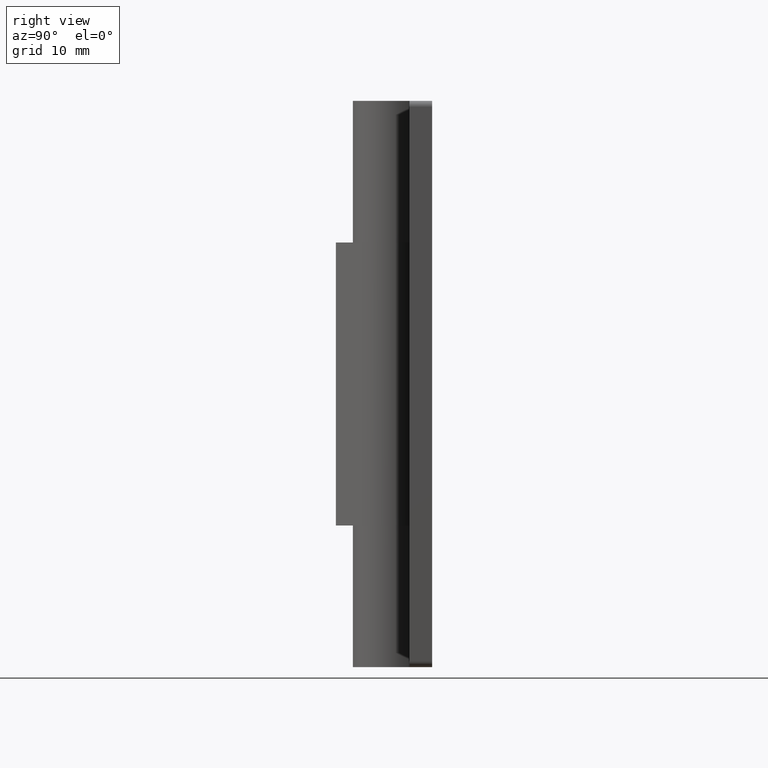
[diagram: clean part render]
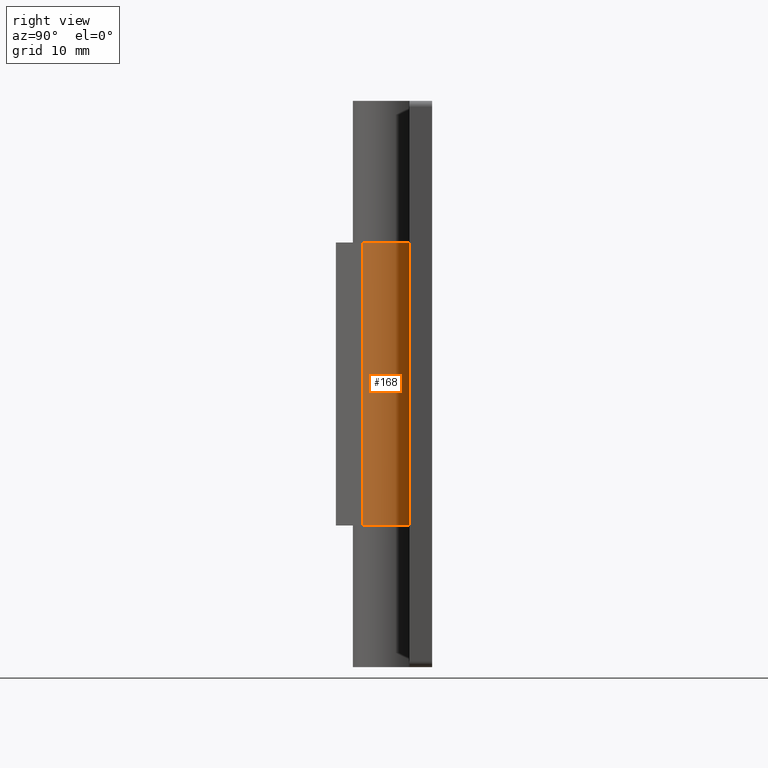
[diagram: same view with one face highlighted and labeled with its STEP entity id]
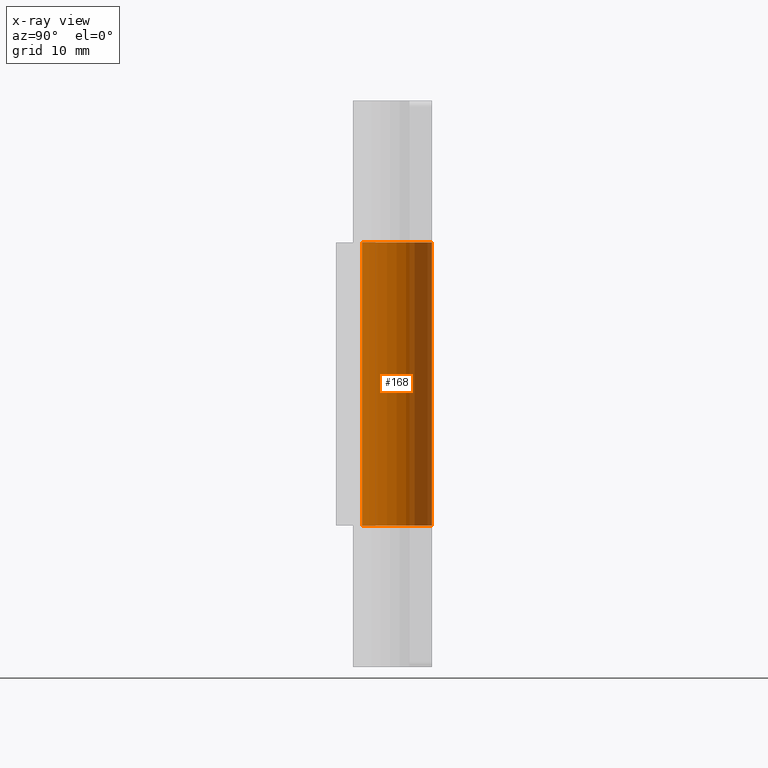
[diagram: x-ray of the same camera — body ghosted, the highlighted face saturated]
A machine part, right view. The second image highlights one B-rep face of the part: STEP entity #168.
The next image is the same camera in x-ray: the body ghosted, the highlighted face saturated — about 32% of this face is hidden behind the body in this view.
In plain terms, the highlighted cylindrical surface (partial cylindrical patch) has radius 3.5 mm, axis along (0, 0, -1).
Its self-contained STEP definition (entity closure, byte-faithful):
#168=ADVANCED_FACE('',(#408),#407,.T.);
#407=CYLINDRICAL_SURFACE('',#1007,3.50000000000E+00);
#408=FACE_OUTER_BOUND('',#1008,.T.);
#1004=CARTESIAN_POINT('',(1.02749495407E-14,8.10629068765E-15,1.18593750000E+01));
#1005=DIRECTION('',(7.82387591442E-16,6.00347113973E-16,-1.00000000000E+00));
#1006=DIRECTION('',(-6.08761429009E-01,7.93353340291E-01,-3.54987407349E-30));
#1007=AXIS2_PLACEMENT_3D('',#1004,#1005,#1006);
#1008=EDGE_LOOP('',(#1421,#1422,#1423,#1424));
#1421=ORIENTED_EDGE('',*,*,#1756,.F.);
#1422=ORIENTED_EDGE('',*,*,#1689,.F.);
#1423=ORIENTED_EDGE('',*,*,#1765,.T.);
#1424=ORIENTED_EDGE('',*,*,#1767,.T.);
#1689=EDGE_CURVE('',#1971,#1978,#1979,.T.);
#1756=EDGE_CURVE('',#1978,#2431,#2432,.T.);
#1765=EDGE_CURVE('',#1971,#2486,#2493,.T.);
#1767=EDGE_CURVE('',#2486,#2431,#2505,.T.);
#1971=VERTEX_POINT('',#3235);
#1978=VERTEX_POINT('',#3239);
#1979=LINE('',#3240,#3241);
#2431=VERTEX_POINT('',#3532);
#2432=CIRCLE('',#3536,3.50000044024E+00);
#2486=VERTEX_POINT('',#3566);
#2493=CIRCLE('',#3573,3.50000044024E+00);
#2505=LINE('',#3577,#3578);
#3235=CARTESIAN_POINT('',(2.14306100000E-16,3.50000000000E+00,3.75000000000E+01));
#3239=CARTESIAN_POINT('',(2.14306100000E-16,3.50000000000E+00,1.25000000000E+01));
#3240=CARTESIAN_POINT('',(2.14306100000E-16,3.50000000000E+00,3.75000000000E+01));
#3241=VECTOR('',#3242,2.50000000000E+01);
#3242=DIRECTION('',(0.00000000000E+00,0.00000000000E+00,-1.00000000000E+00));
#3532=CARTESIAN_POINT('',(2.24975700000E+00,-2.68115600000E+00,1.25000000000E+01));
#3533=CARTESIAN_POINT('',(-3.08260743154E-07,-4.40241965161E-07,1.25000000000E+01));
#3534=DIRECTION('',(2.21213116924E-16,-1.94832317831E-23,-1.00000000000E+00));
#3535=DIRECTION('',(-8.80744869656E-08,-1.00000000000E+00,-0.00000000000E+00));
#3536=AXIS2_PLACEMENT_3D('',#3533,#3534,#3535);
#3566=CARTESIAN_POINT('',(2.24975700000E+00,-2.68115600000E+00,3.75000000000E+01));
#3570=CARTESIAN_POINT('',(-3.08260743154E-07,-4.40241965161E-07,3.75000000000E+01));
#3571=DIRECTION('',(-4.42426233848E-16,3.89664635663E-23,-1.00000000000E+00));
#3572=DIRECTION('',(-8.80744869656E-08,-1.00000000000E+00,-0.00000000000E+00));
#3573=AXIS2_PLACEMENT_3D('',#3570,#3571,#3572);
#3577=CARTESIAN_POINT('',(2.24975700000E+00,-2.68115600000E+00,3.75000000000E+01));
#3578=VECTOR('',#3579,2.50000000000E+01);
#3579=DIRECTION('',(0.00000000000E+00,0.00000000000E+00,-1.00000000000E+00));